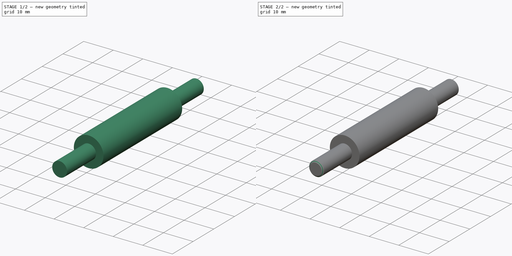
[diagram: build sequence overview — one tinted view per stage of 2, left to right]
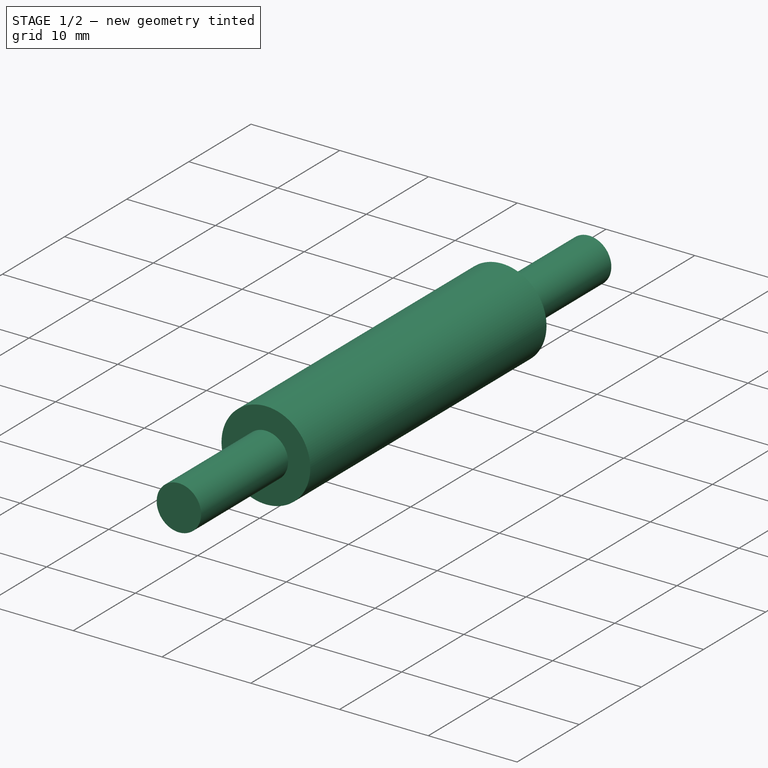
[diagram: stage 1 of 2 — iso view after this stage's code; geometry added in this stage tinted green]
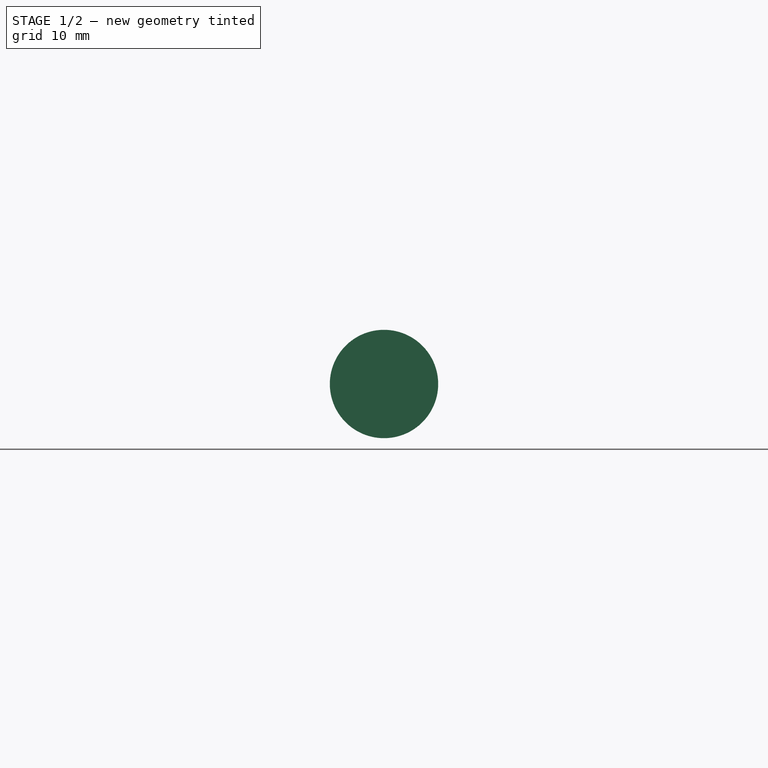
[diagram: stage 1 of 2 — front view after this stage's code; geometry added in this stage tinted green]
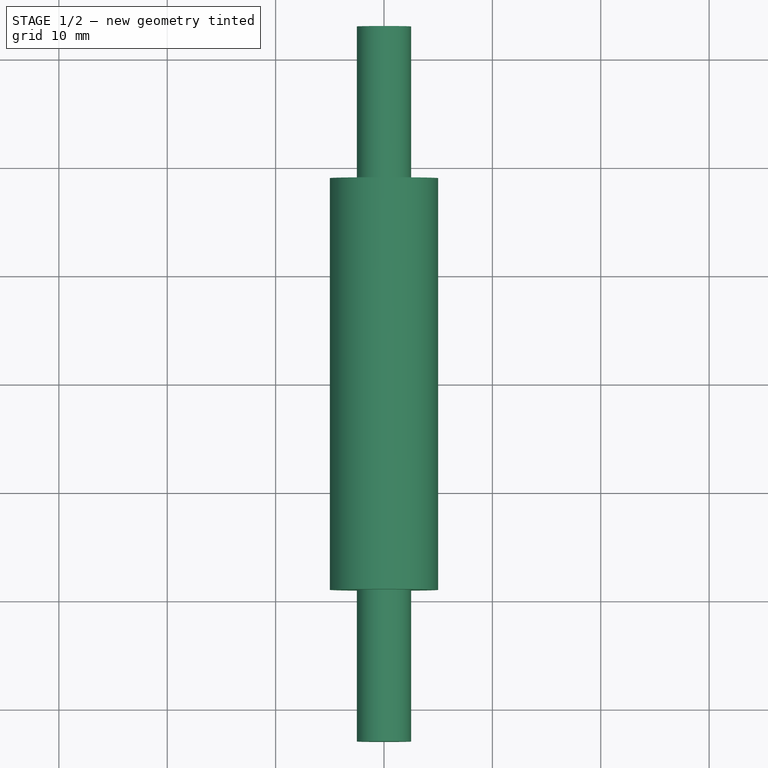
[diagram: stage 1 of 2 — top view after this stage's code; geometry added in this stage tinted green]
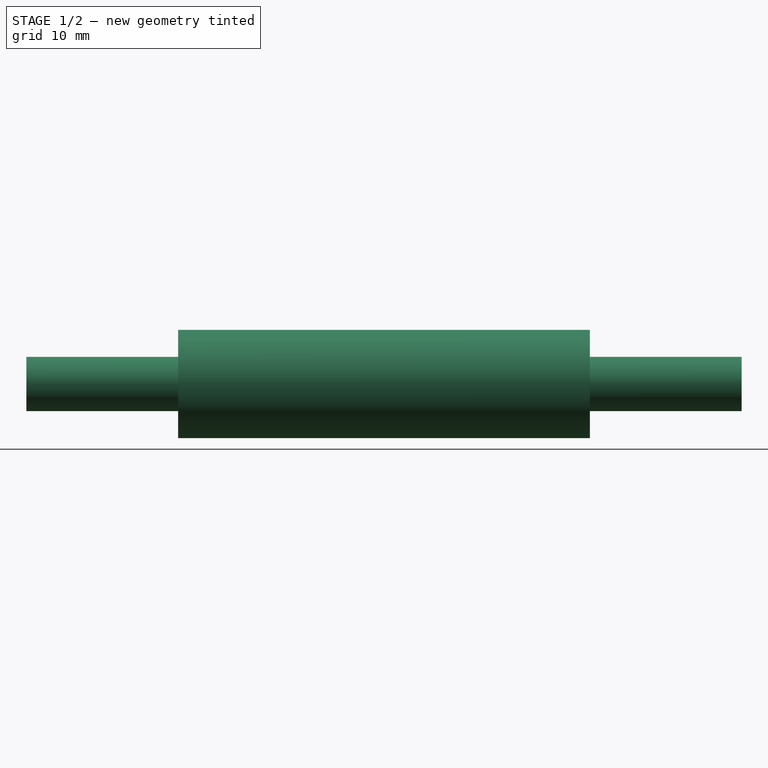
[diagram: stage 1 of 2 — right view after this stage's code; geometry added in this stage tinted green]
FCSTD DOCUMENT  (FreeCAD 0.15R4671 (Git))
Label: rod
License: All rights reserved
LicenseURL: http://en.wikipedia.org/wiki/All_rights_reserved
objects: Drawing::FeatureView×4, Sketcher::SketchObject×1, PartDesign::Revolution×1, PartDesign::Chamfer×1, Drawing::FeatureViewPart×1, Drawing::FeaturePage×1
note: 4 computed .brp shape members not serialized (recipe doc carries the construction recipe); baked Part::Feature solids carry a one-line shape summary decoded from their .brp

FEATURE [Sketcher::SketchObject] Sketch  label="base-sketch"
  Placement = pos=(0,0,0) rot=(0.57735,0.57735,0.57735;2.0944rad)
  sketch-geometry (8):
    g0: LineSegment StartX=-33 StartY=0 StartZ=0 EndX=-33 EndY=2.5 EndZ=0
    g1: LineSegment StartX=-33 StartY=2.5 StartZ=0 EndX=-19 EndY=2.5 EndZ=0
    g2: LineSegment StartX=-19 StartY=2.5 StartZ=0 EndX=-19 EndY=5 EndZ=0
    g3: LineSegment StartX=-19 StartY=5 StartZ=0 EndX=19 EndY=5 EndZ=0
    g4: LineSegment StartX=19 StartY=5 StartZ=0 EndX=19 EndY=2.5 EndZ=0
    g5: LineSegment StartX=19 StartY=2.5 StartZ=0 EndX=33 EndY=2.5 EndZ=0
    g6: LineSegment StartX=33 StartY=2.5 StartZ=0 EndX=33 EndY=0 EndZ=0
    g7: LineSegment StartX=-33 StartY=0 StartZ=0 EndX=33 EndY=0 EndZ=0
  constraints (24):
    c: PointOnObject(g0,g-1)
    c: Vertical(g0)
    c: Coincident(g0,g1)
    c: Horizontal(g1)
    c: Coincident(g1,g2)
    c: Coincident(g2,g3)
    c: Horizontal(g3)
    c: Coincident(g3,g4)
    c: Coincident(g4,g5)
    c: Horizontal(g5)
    c: Coincident(g5,g6)
    c: DistanceY(g0,g0) = -2.5
    c: Vertical(g2)
    c: DistanceY(g2,g0) = -5
    c: PointOnObject(g4,g1)
    c: Vertical(g4)
    c: Symmetric(g0,g6,g-1)
    c: Symmetric(g2,g3,g-2)
    c: Vertical(g6)
    c: Equal(g1,g5)
    c: DistanceX(g0,g1) = 14
    c: DistanceX(g2,g3) = 38
    c: Coincident(g7,g0)
    c: Coincident(g7,g6)
FEATURE [PartDesign::Revolution] Revolution  label="base"
  Angle = 360
  Axis = (0,1,0)
  Base = (0,0,0)
  Placement = pos=(0,0,0) rot=(0.57735,0.57735,0.57735;2.0944rad)
  ReferenceAxis = -> Sketch [H_Axis]
  Sketch = -> Sketch
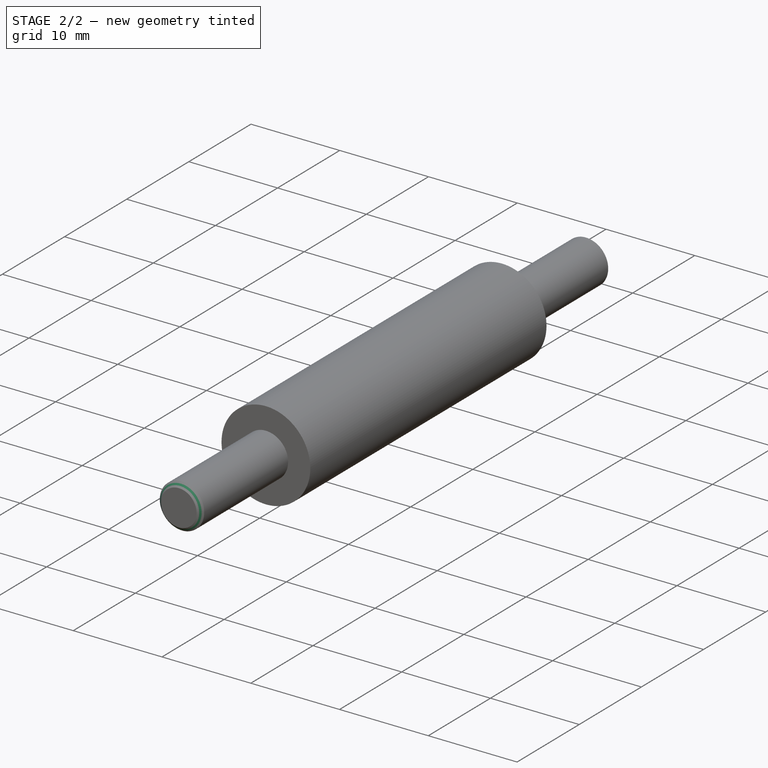
[diagram: stage 2 of 2 — iso view after this stage's code; geometry added in this stage tinted green]
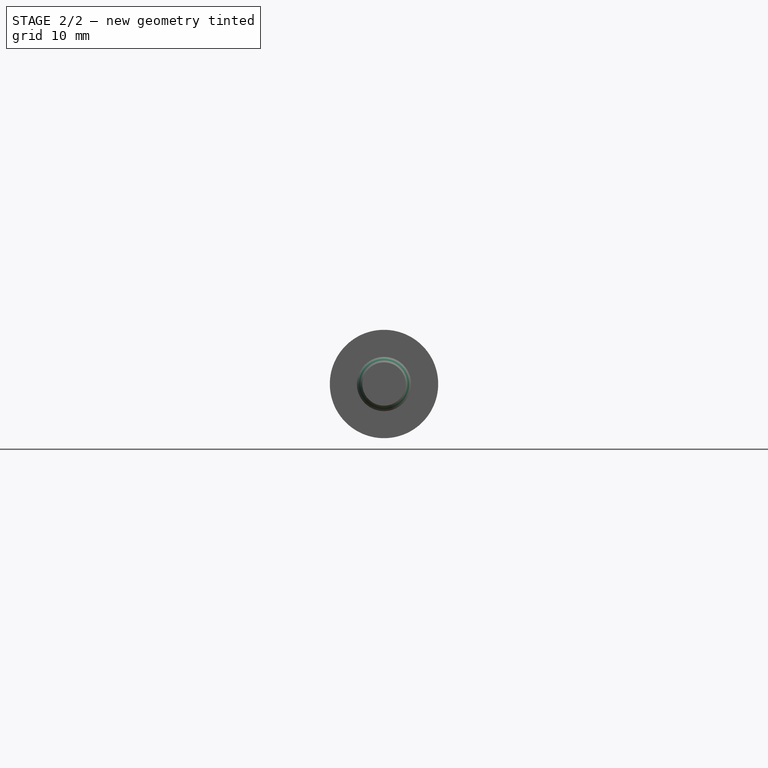
[diagram: stage 2 of 2 — front view after this stage's code; geometry added in this stage tinted green]
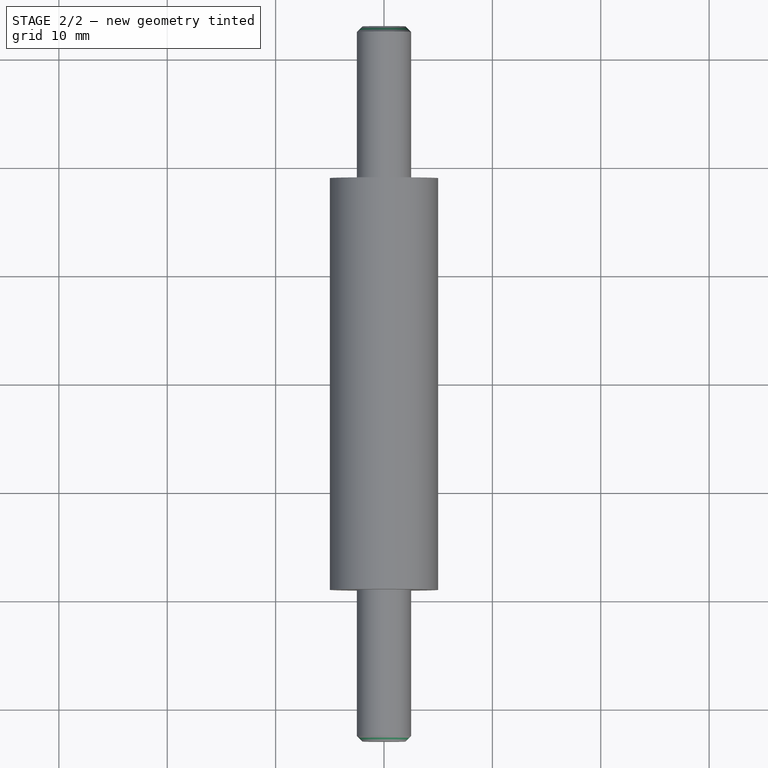
[diagram: stage 2 of 2 — top view after this stage's code; geometry added in this stage tinted green]
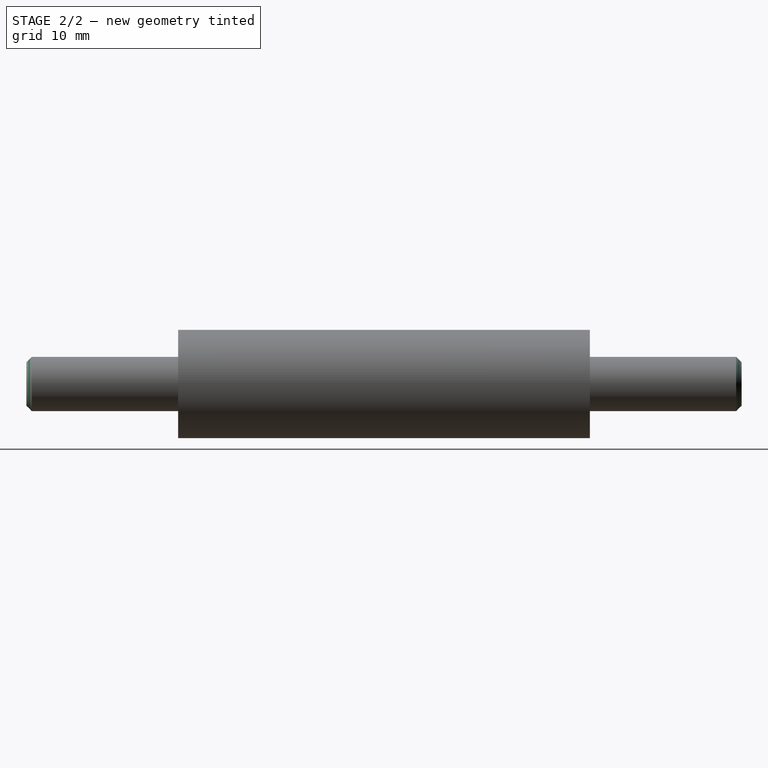
[diagram: stage 2 of 2 — right view after this stage's code; geometry added in this stage tinted green]
FEATURE [PartDesign::Chamfer] Chamfer  label="rod"
  Base = -> Revolution [Edge8,Edge1]
  Placement = pos=(0,0,0) rot=(0.57735,0.57735,0.57735;2.0944rad)
  Size = 0.5
FEATURE [Drawing::FeatureViewPart] Ortho  label="Ortho_0_0"
  Direction = (1,0,0)
  HiddenWidth = 0.15
  LineWidth = 0.35
  Rotation = -90
  Scale = 2
  ShowHiddenLines = false
  ShowSmoothLines = false
  Source = -> Chamfer
  Tolerance = 0.05
  ViewResult = <blob: 2187 chars omitted>
  Visible = true
  X = 148.5
  Y = 105
FEATURE [Drawing::FeatureView] dim001
  Rotation = 0
  ViewResult = <g> \n  <line x1="82.500000" y1="99.000000" x2="82.500000" y2="77.104208" style="stroke:rgb(0,0,255);stroke-width:0.50" />\n<line x1="214.500000" y1="99.000000" x2="214.500000" y2="77.104208" style="stroke:rgb(0,0,255);stroke-width:0.50" />\n<line x1="82.500000" y1="78.104208" x2="214.500000" y2="78.104208" style="stroke:rgb(0,0,255);stroke-width:0.50" /> \n  <polygon points="214.500000,78.104208 211.500000,77.104208 210.500000,78.104208 211.500000,79.104208" style="fill:rgb(0,0,255);stroke:rgb(0,0,255);stroke-width:0" /><polygon points="82.500000,78.104208 85.500000,79.104208 86.500000,78.104208 85.500000,77.104208" style="fill:rgb(0,0,255);stroke:rgb(0,0,255);stroke-width:0" /> \n  <text x="148.500000" y="76.104208" font-family="inherit" font-size="3.6" fill="rgb(0,0,255)" text-anchor="middle" transform="rotate(0.000000 148.500000,76.104208)" >66</text> </g>
  Visible = true
  X = 0
  Y = 0
FEATURE [Drawing::FeatureView] dim002
  Rotation = 0
  ViewResult = <g> \n  <line x1="110.500000" y1="93.000000" x2="110.500000" y2="85.039452" style="stroke:rgb(0,0,255);stroke-width:0.50" />\n<line x1="186.500000" y1="93.000000" x2="186.500000" y2="85.039452" style="stroke:rgb(0,0,255);stroke-width:0.50" />\n<line x1="110.500000" y1="86.039452" x2="186.500000" y2="86.039452" style="stroke:rgb(0,0,255);stroke-width:0.50" /> \n  <polygon points="186.500000,86.039452 183.500000,85.039452 182.500000,86.039452 183.500000,87.039452" style="fill:rgb(0,0,255);stroke:rgb(0,0,255);stroke-width:0" /><polygon points="110.500000,86.039452 113.500000,87.039452 114.500000,86.039452 113.500000,85.039452" style="fill:rgb(0,0,255);stroke:rgb(0,0,255);stroke-width:0" /> \n  <text x="148.500000" y="84.039452" font-family="inherit" font-size="3.6" fill="rgb(0,0,255)" text-anchor="middle" transform="rotate(0.000000 148.500000,84.039452)" >38</text> </g>
  Visible = true
  X = 0
  Y = 0
FEATURE [Drawing::FeatureView] dim003
  Rotation = 0
  ViewResult = <g> \n  <line x1="188.500000" y1="95.000000" x2="229.286889" y2="95.000000" style="stroke:rgb(0,0,255);stroke-width:0.50" />\n<line x1="188.500000" y1="115.000000" x2="229.286889" y2="115.000000" style="stroke:rgb(0,0,255);stroke-width:0.50" />\n<line x1="228.286889" y1="95.000000" x2="228.286889" y2="115.000000" style="stroke:rgb(0,0,255);stroke-width:0.50" /> \n  <polygon points="228.286889,115.000000 229.286889,112.000000 228.286889,111.000000 227.286889,112.000000" style="fill:rgb(0,0,255);stroke:rgb(0,0,255);stroke-width:0" /><polygon points="228.286889,95.000000 227.286889,98.000000 228.286889,99.000000 229.286889,98.000000" style="fill:rgb(0,0,255);stroke:rgb(0,0,255);stroke-width:0" /> \n  <text x="226.286889" y="105.000000" font-family="inherit" font-size="3.6" fill="rgb(0,0,255)" text-anchor="middle" transform="rotate(-90.000000 226.286889,105.000000)" >10</text> </g>
  Visible = true
  X = 0
  Y = 0
FEATURE [Drawing::FeatureView] dim004
  Rotation = 0
  ViewResult = <g> \n  <line x1="81.500000" y1="100.000000" x2="75.730959" y2="100.000000" style="stroke:rgb(0,0,255);stroke-width:0.50" />\n<line x1="81.500000" y1="110.000000" x2="75.730959" y2="110.000000" style="stroke:rgb(0,0,255);stroke-width:0.50" />\n<line x1="76.730959" y1="100.000000" x2="76.730959" y2="110.000000" style="stroke:rgb(0,0,255);stroke-width:0.50" /> \n  <polygon points="76.730959,110.000000 75.730959,113.000000 76.730959,114.000000 77.730959,113.000000" style="fill:rgb(0,0,255);stroke:rgb(0,0,255);stroke-width:0" /><polygon points="76.730959,100.000000 77.730959,97.000000 76.730959,96.000000 75.730959,97.000000" style="fill:rgb(0,0,255);stroke:rgb(0,0,255);stroke-width:0" /> \n  <text x="74.730959" y="105.000000" font-family="inherit" font-size="3.6" fill="rgb(0,0,255)" text-anchor="middle" transform="rotate(-90.000000 74.730959,105.000000)" >M5</text> </g>
  Visible = true
  X = 0
  Y = 0
FEATURE [Drawing::FeaturePage] Page
  Group = -> [Ortho,dim001,dim002,dim003,dim004]
  Template = <path>
note: 1 file-system path scrubbed to <path> (originals preserved in the JSON sidecar)
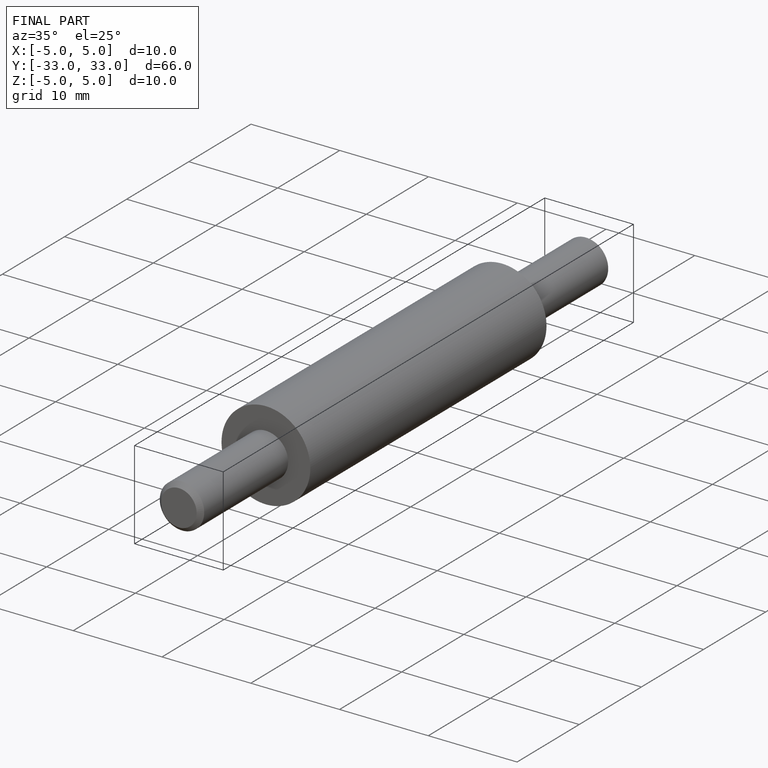
[diagram: finished part — iso view with bounding-box wireframe]
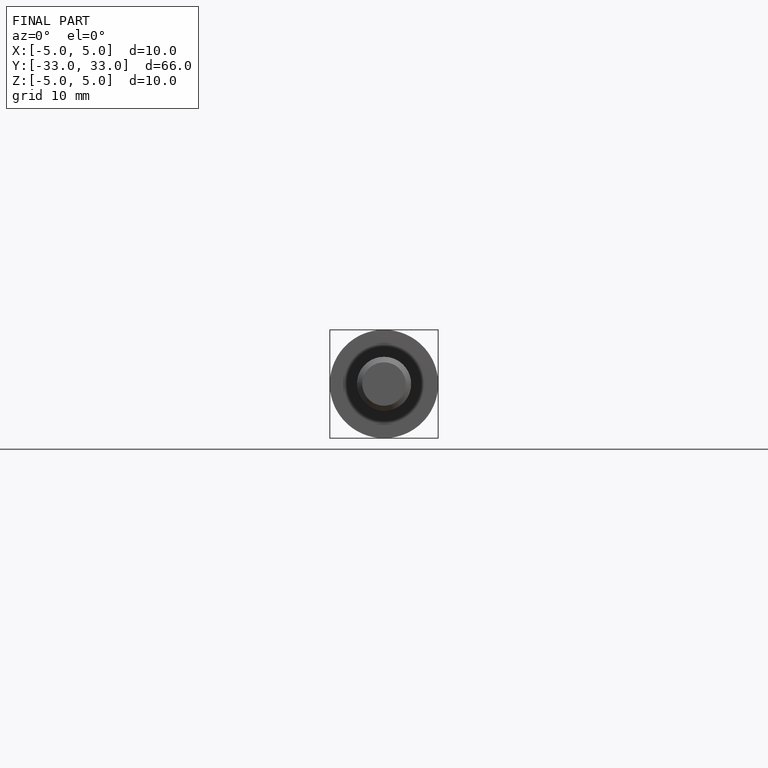
[diagram: finished part — front view with bounding-box wireframe]
